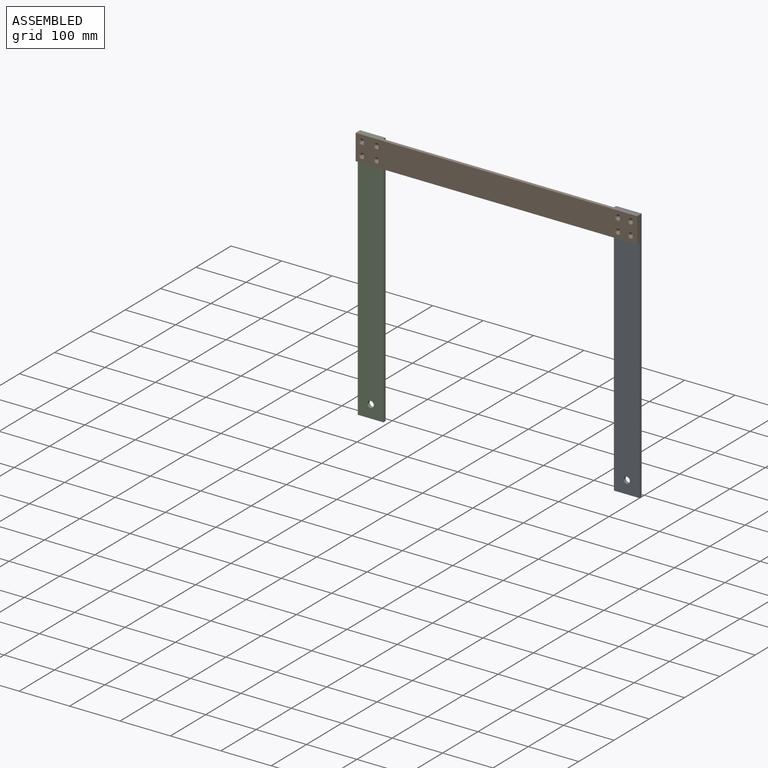
[diagram: assembled view]
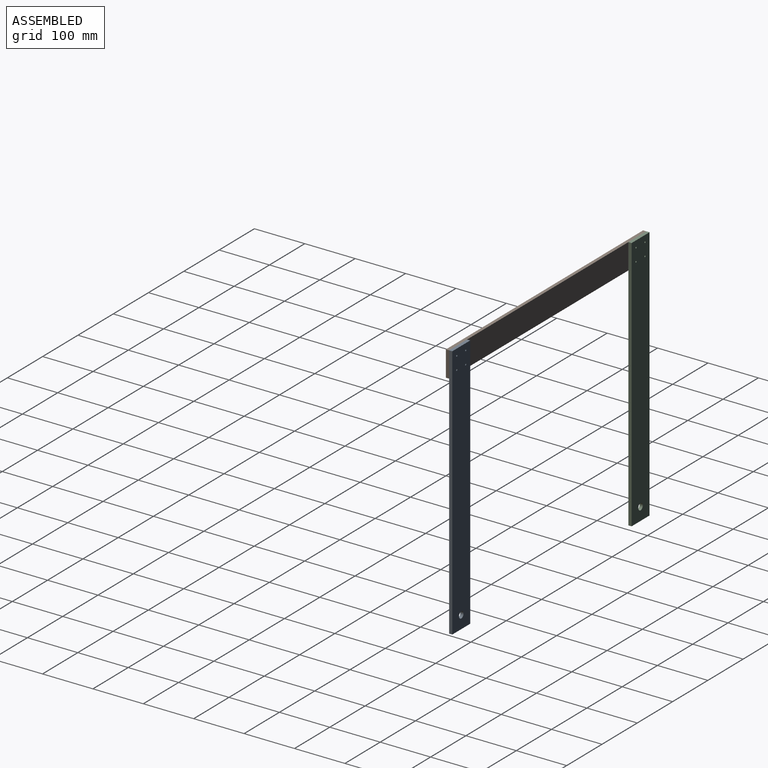
[diagram: assembled view, second angle]
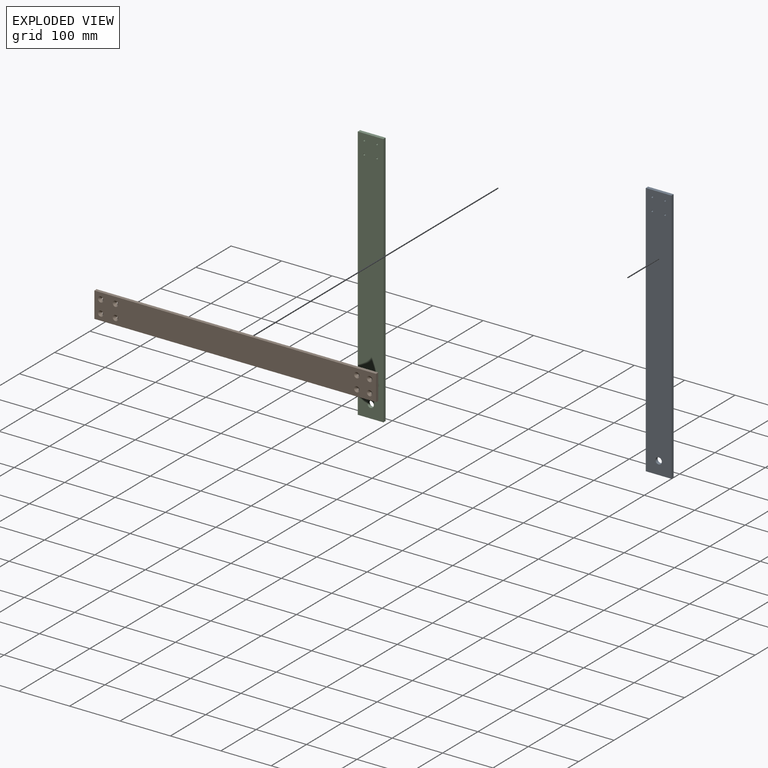
[diagram: exploded view]
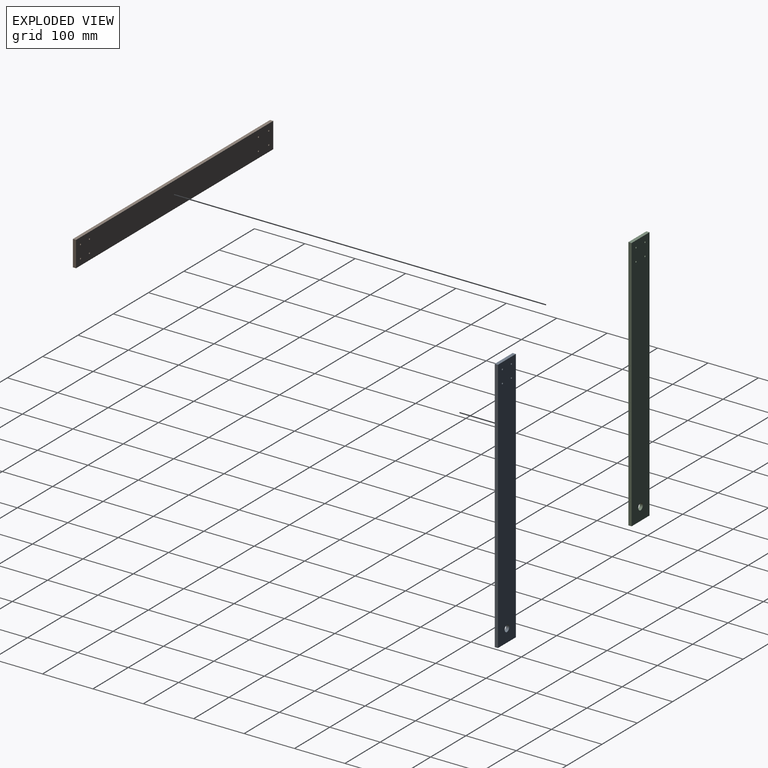
[diagram: exploded view, second angle]
ASSEMBLY  parts=3 mates=2
PART A: 11 faces, bbox 50.8x6.4x508 mm
  f0: plane 50.8x6.35mm, normal (0,0,1), area 322.6mm2, adj f1,f3,f4,f5
  f1: plane 508x6.35mm, normal (-1,0,0), area 3225.8mm2, adj f0,f2,f4,f5
  f2: plane 50.8x6.35mm, normal (0,0,-1), area 322.6mm2, adj f1,f3,f4,f5
  f3: plane 508x6.35mm, normal (1,0,0), area 3225.8mm2, adj f0,f2,f4,f5
  f4: plane 508x50.8mm, normal (0,-1,0), area 25648.1mm2, adj f0,f1,f2,f3,f6,f7,f8,f9
  f5: plane 508x50.8mm, normal (0,1,0), area 25648.1mm2, adj f0,f1,f2,f3,f6,f7,f8,f9
  f6: cylinder r=1.59mm len=6.35mm, axis (0,-1,0), area 63.3mm2, adj f4,f5
  f7: cylinder r=1.59mm len=6.35mm, axis (0,-1,0), area 63.3mm2, adj f4,f5
  f8: cylinder r=1.59mm len=6.35mm, axis (0,-1,0), area 63.3mm2, adj f4,f5
  f9: cylinder r=1.59mm len=6.35mm, axis (0,-1,0), area 63.3mm2, adj f4,f5
  f10: cylinder r=6.35mm len=12.7mm, axis (0,-1,0), area 253.4mm2, adj f4,f5
PART B: 22 faces, bbox 558.8x6.4x50.8 mm
  f0: plane 50.8x6.35mm, normal (-1,0,0), area 322.6mm2, adj f1,f3,f4,f5
  f1: plane 558.8x6.35mm, normal (0,0,-1), area 3548.4mm2, adj f0,f2,f4,f5
  f2: plane 50.8x6.35mm, normal (1,0,0), area 322.6mm2, adj f1,f3,f4,f5
  f3: plane 558.8x6.35mm, normal (0,0,1), area 3548.4mm2, adj f0,f2,f4,f5
  f4: plane 558.8x50.8mm, normal (0,-1,0), area 27654.8mm2, adj f0,f1,f2,f3,f14,f15,f16,f17
  f5: plane 558.8x50.8mm, normal (0,1,0), area 28323.7mm2, adj f0,f1,f2,f3,f6,f7,f8,f9
  f6: cylinder r=1.59mm len=3.18mm, axis (0,-1,0), area 25.3mm2, adj f5,f20
  f7: cylinder r=1.59mm len=3.18mm, axis (0,-1,0), area 25.3mm2, adj f5,f21
  f8: cylinder r=1.59mm len=3.18mm, axis (0,-1,0), area 25.3mm2, adj f5,f18
  f9: cylinder r=1.59mm len=3.18mm, axis (0,-1,0), area 25.3mm2, adj f5,f19
  f10: cylinder r=1.59mm len=3.18mm, axis (0,-1,0), area 25.3mm2, adj f5,f17
  f11: cylinder r=1.59mm len=3.18mm, axis (0,-1,0), area 25.3mm2, adj f5,f16
  f12: cylinder r=1.59mm len=3.18mm, axis (0,-1,0), area 25.3mm2, adj f5,f14
  f13: cylinder r=1.59mm len=3.18mm, axis (0,-1,0), area 25.3mm2, adj f5,f15
  f14: cone r=1.59mm half-angle=45deg, axis (0,-1,0), area 118.2mm2, adj f4,f12
  f15: cone r=1.59mm half-angle=45deg, axis (0,-1,0), area 118.2mm2, adj f4,f13
  f16: cone r=1.59mm half-angle=45deg, axis (0,-1,0), area 118.2mm2, adj f4,f11
  f17: cone r=1.59mm half-angle=45deg, axis (0,-1,0), area 118.2mm2, adj f4,f10
  f18: cone r=1.59mm half-angle=45deg, axis (0,-1,0), area 118.2mm2, adj f4,f8
  f19: cone r=1.59mm half-angle=45deg, axis (0,-1,0), area 118.2mm2, adj f4,f9
  f20: cone r=1.59mm half-angle=45deg, axis (0,-1,0), area 118.2mm2, adj f4,f6
  f21: cone r=1.59mm half-angle=45deg, axis (0,-1,0), area 118.2mm2, adj f4,f7
PART C: same geometry as A
PLACE A t=(263.1,-27.23,-485.1)mm
PLACE B t=(-244.9,-33.58,22.9)mm
PLACE C t=(-244.9,-27.23,-485.1)mm
MATE fastened A.f4 <-> B.f5  axis (0,-1,0) through (313.9,-33.58,22.9)mm
MATE fastened C.f4 <-> B.f5  axis (0,-1,0) through (-244.9,-33.58,22.9)mm
